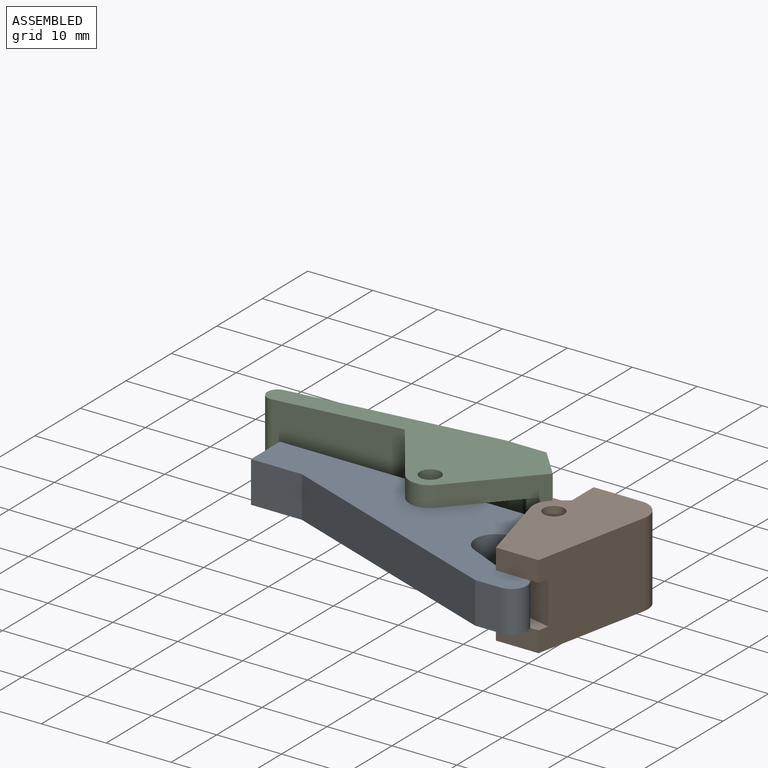
[diagram: assembled view]
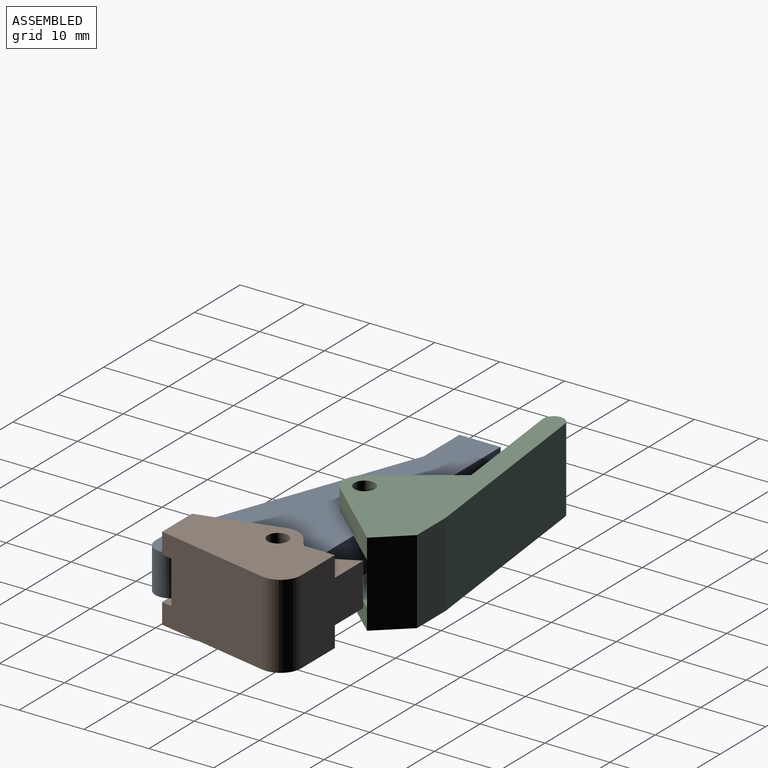
[diagram: assembled view, second angle]
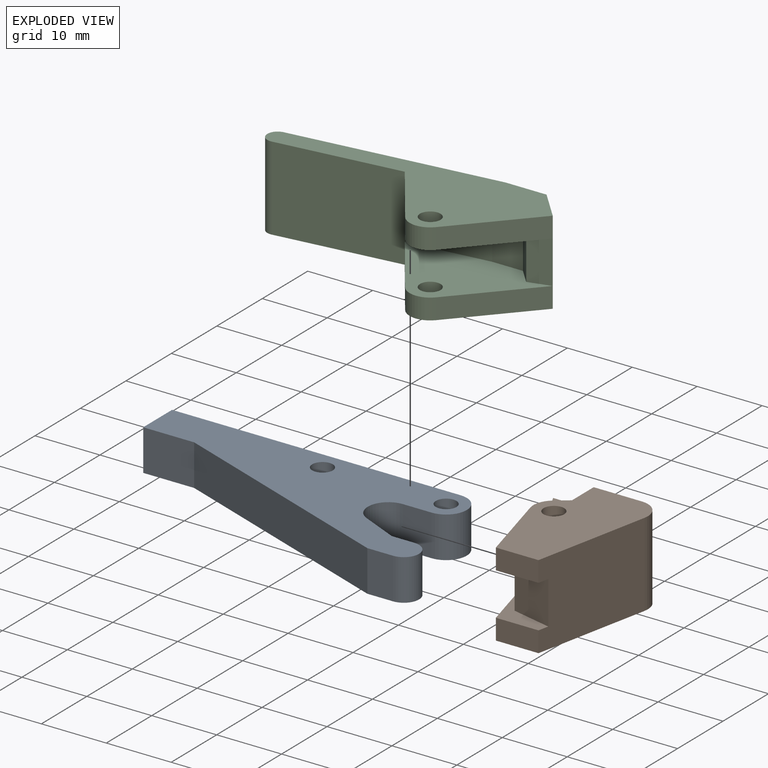
[diagram: exploded view]
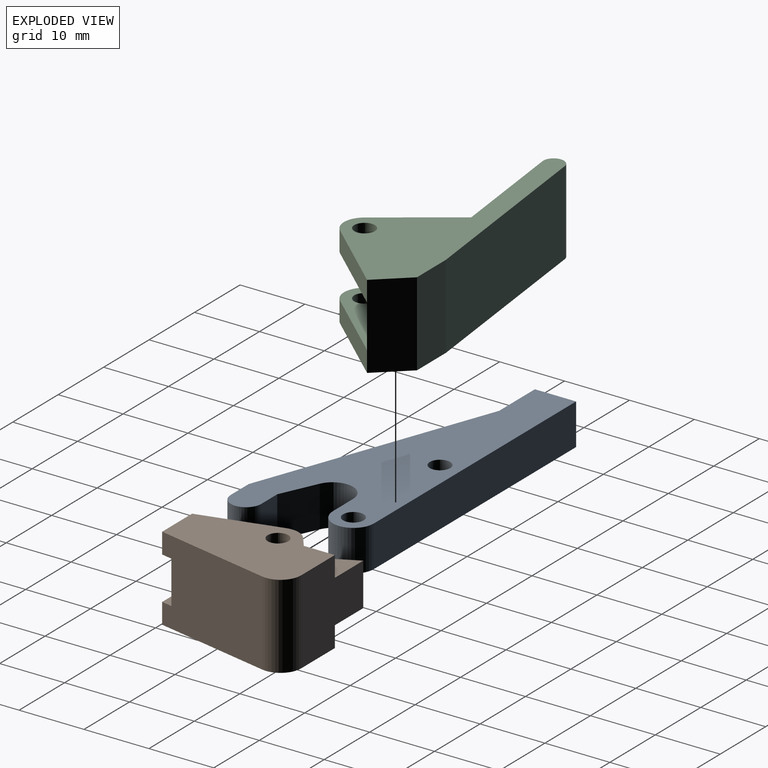
[diagram: exploded view, second angle]
ASSEMBLY  parts=3 mates=3
PART A: 15 faces, bbox 50.2x19.7x6.4 mm
  f0: plane 7.85x6.35mm, normal (0,-1,0), area 49.9mm2, adj f1,f7,f8,f9
  f1: plane 6.35x6.35mm, normal (-1,0,0), area 40.3mm2, adj f0,f5,f7,f8
  f2: plane 6.35x4.45mm, normal (0,-1,0), area 28.3mm2, adj f3,f7,f8,f14
  f3: cylinder r=3.17mm len=6.35mm, axis (0,0,-1), area 63.3mm2, adj f2,f5,f7,f8
  f4: cylinder r=1.59mm len=6.35mm, axis (0,0,-1), area 63.3mm2, adj f7,f8
  f5: plane 44.45x6.35mm, normal (0,1,0), area 282.3mm2, adj f1,f3,f7,f8
  f6: cylinder r=1.59mm len=6.35mm, axis (0,0,-1), area 63.3mm2, adj f7,f8
  f7: plane 50.19x19.69mm, normal (0,0,1), area 504.6mm2, adj f0,f1,f2,f3,f4,f5,f6,f9
  f8: plane 50.19x19.69mm, normal (0,0,-1), area 504.6mm2, adj f0,f1,f2,f3,f4,f5,f6,f9
  f9: plane 36.03x13.34mm, normal (-0.35,-0.94,0), area 244mm2, adj f0,f7,f8,f10
  f10: plane 6.35x3.96mm, normal (0,-1,0), area 25.2mm2, adj f7,f8,f9,f11
  f11: cylinder r=2.35mm len=6.35mm, axis (0,0,1), area 46.9mm2, adj f7,f8,f10,f12
  f12: plane 6.35x3.52mm, normal (0,1,0), area 22.3mm2, adj f7,f8,f11,f13
  f13: plane 6.35x5.65mm, normal (0.42,0.91,0), area 39.5mm2, adj f7,f8,f12,f14
  f14: cylinder r=3.17mm len=6.35mm, axis (0,0,-1), area 54.7mm2, adj f2,f7,f8,f13
PART B: 27 faces, bbox 16.8x21.8x13 mm
  f0: plane 9.28x6.6mm, normal (-0.97,0.23,0), area 62.9mm2, adj f4,f17,f19,f26
  f1: plane 6.57x3.18mm, normal (0,-1,0), area 20.9mm2, adj f2,f4,f8,f13
  f2: plane 18.03x12.95mm, normal (0.98,-0.2,0), area 227.3mm2, adj f1,f4,f9,f10,f13,f19,f25,f26
  f3: plane 6.25x3.18mm, normal (0,0,1), area 17.3mm2, adj f11,f14,f15,f23
  f4: plane 18.67x10.31mm, normal (0,0,1), area 76.6mm2, adj f0,f1,f2,f5,f6,f7,f8,f12
  f5: plane 4.78x3.18mm, normal (-1,0,0), area 15.2mm2, adj f4,f6,f11,f13,f18
  f6: plane 3.18x1.91mm, normal (-0.6,0.8,0), area 7.6mm2, adj f4,f5,f7,f13
  f7: cylinder r=3.17mm len=3.36mm, axis (0,0,-1), area 12mm2, adj f4,f6,f8,f13
  f8: plane 12.27x3.29mm, normal (-0.97,-0.26,0), area 40.3mm2, adj f1,f4,f7,f13
  f9: plane 6.57x3.18mm, normal (0,-1,0), area 20.9mm2, adj f2,f19,f22,f25
  f10: cylinder r=3.17mm len=12.95mm, axis (0,0,-1), area 73mm2, adj f2,f11,f13,f25
  f11: plane 13.66x12.95mm, normal (0,1,0), area 137.2mm2, adj f3,f5,f10,f13,f14,f18,f23,f25
  f12: cylinder r=1.59mm len=3.18mm, axis (0,0,-1), area 31.7mm2, adj f4,f13
  f13: plane 21.84x13.75mm, normal (0,0,-1), area 214.8mm2, adj f1,f2,f5,f6,f7,f8,f10,f11
  f14: plane 6.6x3.18mm, normal (-0.89,-0.45,0), area 23.5mm2, adj f3,f11,f15,f18
  f15: plane 7.81x6.6mm, normal (0,-1,0), area 51.6mm2, adj f3,f4,f14,f16,f18,f19
  f16: plane 6.6x5.58mm, normal (-1,0,0), area 36.9mm2, adj f4,f15,f17,f19
  f17: cylinder r=3.17mm len=6.6mm, axis (0,0,-1), area 4.8mm2, adj f0,f4,f16,f19
  f18: plane 6.25x3.18mm, normal (0,0,-1), area 17.3mm2, adj f5,f11,f14,f15
  f19: plane 18.67x10.31mm, normal (0,0,-1), area 76.6mm2, adj f0,f2,f9,f15,f16,f17,f20,f21
  f20: plane 3.18x1.91mm, normal (-0.6,0.8,0), area 7.6mm2, adj f19,f21,f23,f25
  f21: cylinder r=3.17mm len=3.36mm, axis (0,0,-1), area 12mm2, adj f19,f20,f22,f25
  f22: plane 12.27x3.29mm, normal (-0.97,-0.26,0), area 40.3mm2, adj f9,f19,f21,f25
  f23: plane 4.78x3.18mm, normal (-1,0,0), area 15.2mm2, adj f3,f11,f19,f20,f25
  f24: cylinder r=1.59mm len=3.18mm, axis (0,0,-1), area 31.7mm2, adj f19,f25
  f25: plane 21.84x13.75mm, normal (0,0,1), area 214.8mm2, adj f2,f9,f10,f11,f20,f21,f22,f23
  f26: plane 6.6x6.2mm, normal (-0.23,-0.97,0), area 42mm2, adj f0,f2,f4,f19
PART C: 20 faces, bbox 42.3x20.6x13 mm
  f0: plane 22.04x14.72mm, normal (0,0,1), area 166.7mm2, adj f1,f2,f3,f8,f9,f11,f12,f13
  f1: plane 12.64x4.65mm, normal (-0.94,-0.34,0), area 42.8mm2, adj f0,f2,f9,f10
  f2: cylinder r=3.17mm len=4.71mm, axis (0,0,-1), area 18.1mm2, adj f0,f1,f3,f10
  f3: plane 12.69x8.24mm, normal (0.54,-0.84,0), area 48mm2, adj f0,f2,f4,f10
  f4: plane 12.95x5.66mm, normal (0.89,0.45,0), area 82.3mm2, adj f3,f5,f10,f13,f16,f18
  f5: plane 12.95x6.13mm, normal (0.26,0.97,0), area 82.3mm2, adj f4,f6,f10,f18
  f6: plane 31.43x12.95mm, normal (0.14,0.99,0), area 411.3mm2, adj f5,f7,f10,f18
  f7: cylinder r=1.59mm len=12.95mm, axis (0,0,-1), area 64.6mm2, adj f6,f9,f10,f18
  f8: cylinder r=1.59mm len=3.18mm, axis (0,0,-1), area 31.7mm2, adj f0,f10
  f9: plane 31.24x12.95mm, normal (-0.14,-0.99,0), area 329.4mm2, adj f0,f1,f7,f10,f11,f14,f18,f19
  f10: plane 42.26x20.6mm, normal (0,0,-1), area 304.2mm2, adj f1,f2,f3,f4,f5,f6,f7,f8
  f11: plane 6.6x4.59mm, normal (-0.26,-0.97,0), area 31.4mm2, adj f0,f9,f12,f19
  f12: plane 6.6x2.95mm, normal (-0.89,-0.45,0), area 21.9mm2, adj f0,f11,f13,f19
  f13: plane 6.6x3.57mm, normal (0,-1,0), area 23.5mm2, adj f0,f4,f12,f19
  f14: plane 12.64x4.65mm, normal (-0.94,-0.34,0), area 42.8mm2, adj f9,f15,f18,f19
  f15: cylinder r=3.17mm len=4.71mm, axis (0,0,-1), area 18.1mm2, adj f14,f16,f18,f19
  f16: plane 12.69x8.24mm, normal (0.54,-0.84,0), area 48mm2, adj f4,f15,f18,f19
  f17: cylinder r=1.59mm len=3.18mm, axis (0,0,-1), area 31.7mm2, adj f18,f19
  f18: plane 42.26x20.6mm, normal (0,0,1), area 304.2mm2, adj f4,f5,f6,f7,f9,f14,f15,f16
  f19: plane 22.04x14.72mm, normal (0,0,-1), area 166.7mm2, adj f9,f11,f12,f13,f14,f15,f16,f17
PLACE A t=(24.73,-5.47,3.26)mm
PLACE B t=(44,-18.56,0.08)mm
PLACE C rot(axis=(0,0,1),15deg) t=(22.88,1.32,0.08)mm
MATE planar A.f8 <-> C.f0  axis (0,0,-1) through (26.15,-9.26,3.26)mm
MATE cylindrical B.f7 <-> A.f3  axis (0,0,-1) through (43.78,-5.47,1.67)mm
MATE planar A.f8 <-> B.f4  axis (0,0,-1) through (26.15,-9.26,3.26)mm
